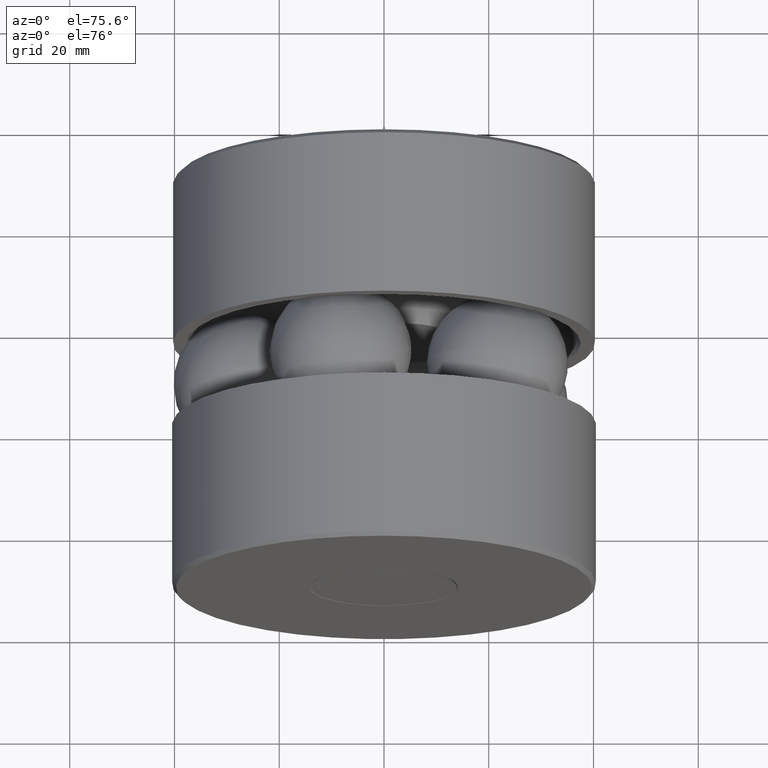
[diagram: clean part render]
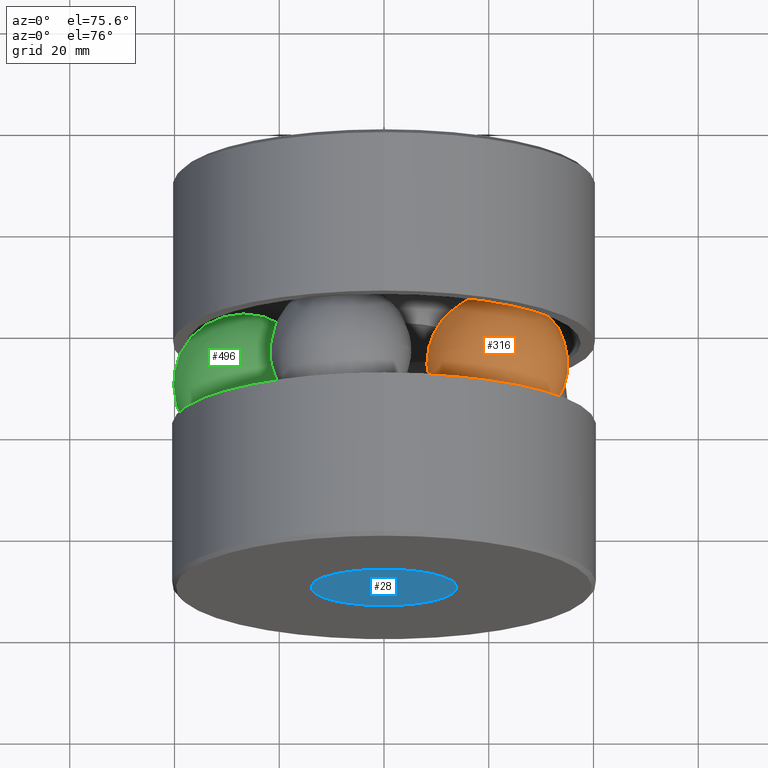
[diagram: same view with three faces highlighted in distinct colors, each labeled with its STEP entity id]
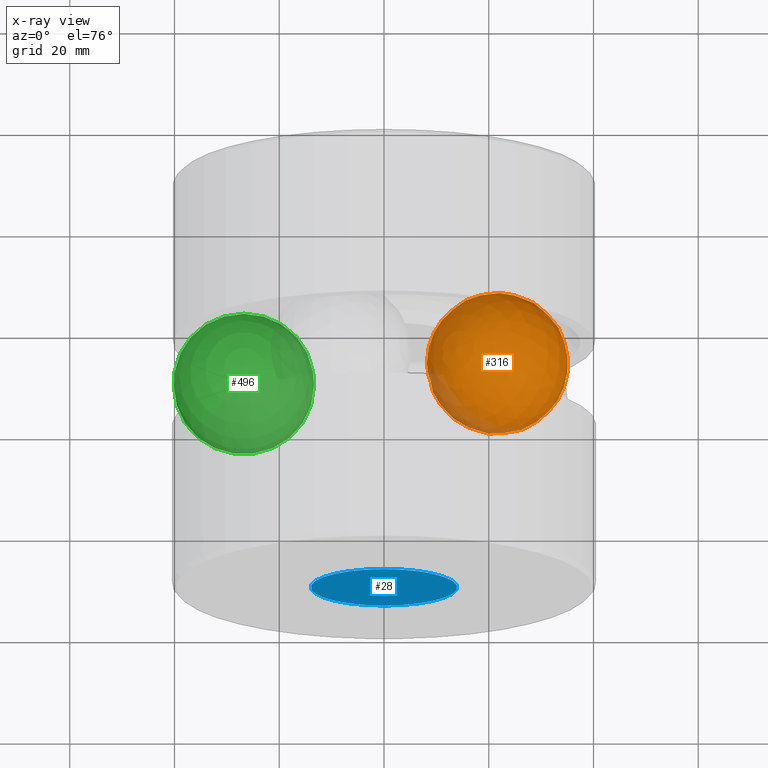
[diagram: x-ray of the same camera — body ghosted, the three highlighted faces saturated]
A machine part, auxiliary view with three faces highlighted in distinct colors.
The next image is the same camera in x-ray (body ghosted, the three faces saturated) — at least one of them is partly hidden behind the body in this view.
Their STEP definitions:

[orange] entity #316 — the highlighted spherical surface has radius 13.4874 mm.
#101 = SPHERICAL_SURFACE ( 'NONE', #319, 0.5309999999999999200 ) ;
#194 = DIRECTION ( 'NONE',  ( -0.8090169943749507800, 0.0000000000000000000, -0.5877852522924687000 ) ) ;
#227 = DIRECTION ( 'NONE',  ( -0.5877852522924687000, 0.0000000000000000000, 0.8090169943749507800 ) ) ;
#232 = CARTESIAN_POINT ( 'NONE',  ( 0.8527039120711981100, 1.577999999999999800, 0.6195256559162619600 ) ) ;
#316 = ADVANCED_FACE ( 'NONE', ( ), #101, .T. ) ;
#319 = AXIS2_PLACEMENT_3D ( 'NONE', #232, #227, #194 ) ;

[blue] entity #28 — the highlighted planar face has unit normal (0, -1, 0).
#28 = ADVANCED_FACE ( 'NONE', ( #446 ), #430, .T. ) ;
#55 = ORIENTED_EDGE ( 'NONE', *, *, #311, .F. ) ;
#124 = EDGE_LOOP ( 'NONE', ( #55 ) ) ;
#127 = CIRCLE ( 'NONE', #231, 0.5504999999999956600 ) ;
#135 = DIRECTION ( 'NONE',  ( 0.0000000000000000000, -1.000000000000000000, 0.0000000000000000000 ) ) ;
#181 = DIRECTION ( 'NONE',  ( 0.0000000000000000000, -0.0000000000000000000, -1.000000000000000000 ) ) ;
#207 = DIRECTION ( 'NONE',  ( 0.0000000000000000000, 0.0000000000000000000, 1.000000000000000000 ) ) ;
#212 = DIRECTION ( 'NONE',  ( -0.0000000000000000000, 1.000000000000000000, -0.0000000000000000000 ) ) ;
#225 = CARTESIAN_POINT ( 'NONE',  ( 0.0000000000000000000, 0.0000000000000000000, 0.0000000000000000000 ) ) ;
#231 = AXIS2_PLACEMENT_3D ( 'NONE', #225, #212, #207 ) ;
#303 = CARTESIAN_POINT ( 'NONE',  ( 0.0000000000000000000, 0.0000000000000000000, 0.5504999999999956600 ) ) ;
#311 = EDGE_CURVE ( 'NONE', #492, #492, #127, .T. ) ;
#332 = CARTESIAN_POINT ( 'NONE',  ( -0.5504999999999956600, 0.0000000000000000000, 0.0000000000000000000 ) ) ;
#407 = AXIS2_PLACEMENT_3D ( 'NONE', #332, #135, #181 ) ;
#430 = PLANE ( 'NONE',  #407 ) ;
#446 = FACE_OUTER_BOUND ( 'NONE', #124, .T. ) ;
#492 = VERTEX_POINT ( 'NONE', #303 ) ;

[green] entity #496 — the highlighted spherical surface has radius 13.4874 mm.
#118 = DIRECTION ( 'NONE',  ( 0.0000000000000000000, 0.0000000000000000000, -1.000000000000000000 ) ) ;
#301 = AXIS2_PLACEMENT_3D ( 'NONE', #341, #118, #485 ) ;
#341 = CARTESIAN_POINT ( 'NONE',  ( -1.054000000000000000, 1.577999999999999800, 0.0000000000000000000 ) ) ;
#485 = DIRECTION ( 'NONE',  ( 1.000000000000000000, 0.0000000000000000000, 0.0000000000000000000 ) ) ;
#496 = ADVANCED_FACE ( 'NONE', ( ), #537, .T. ) ;
#537 = SPHERICAL_SURFACE ( 'NONE', #301, 0.5309999999999999200 ) ;